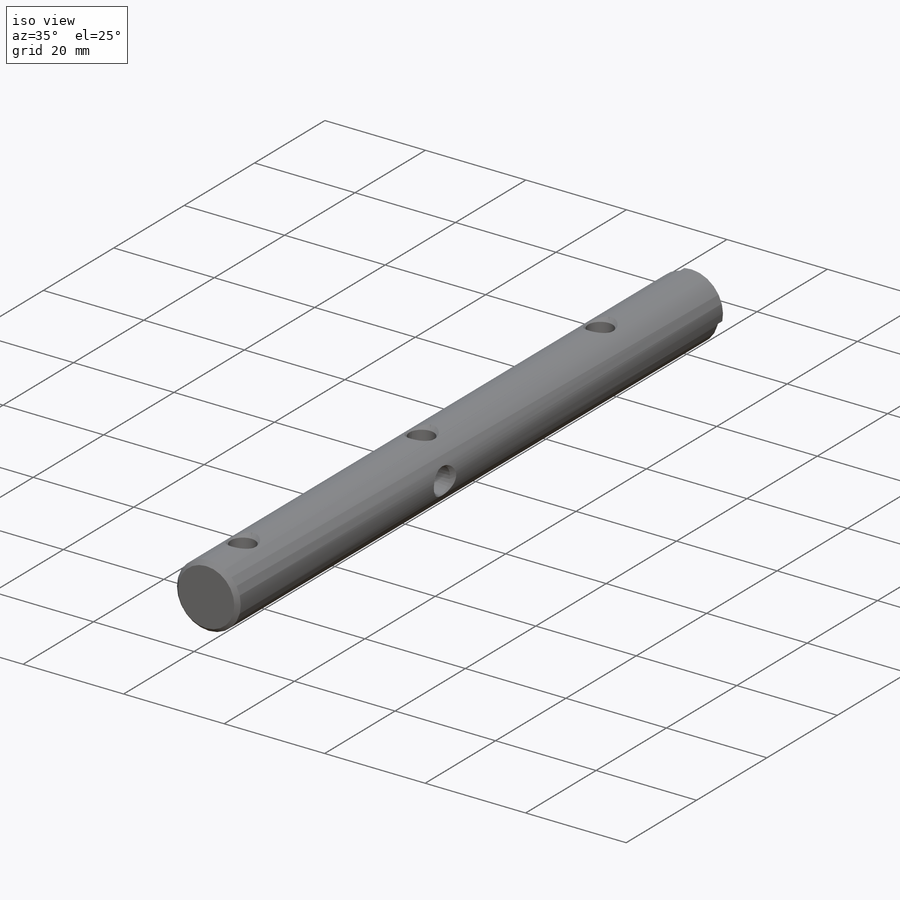
[diagram: iso view]
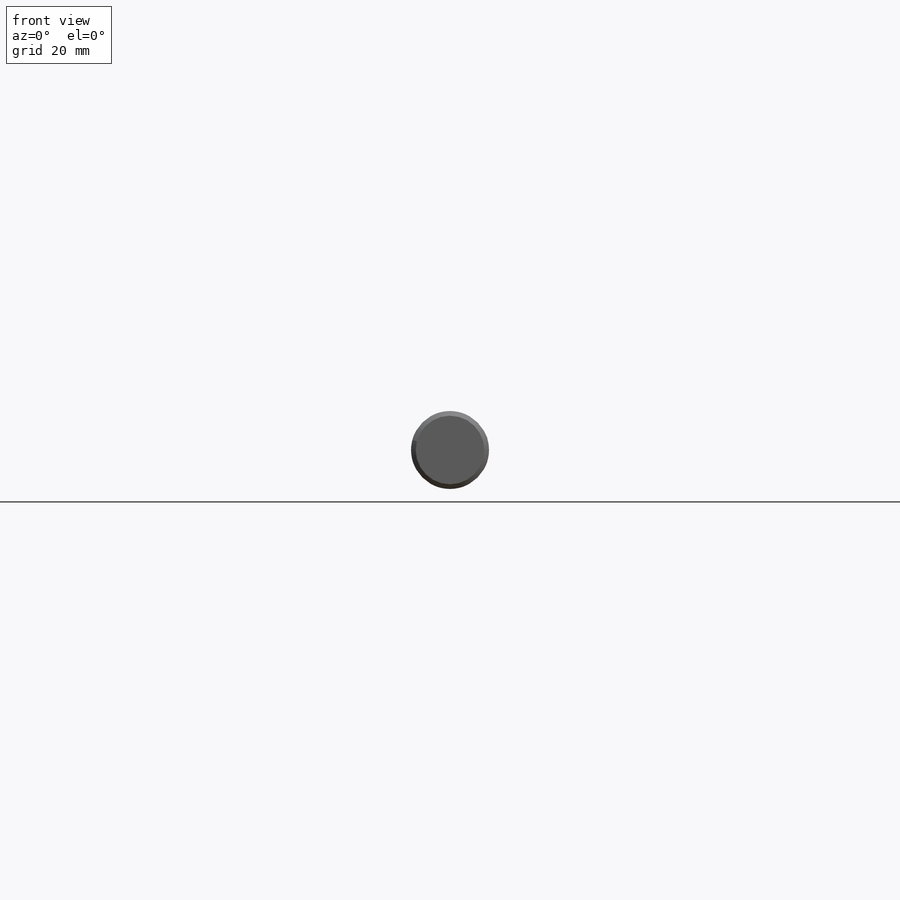
[diagram: front view]
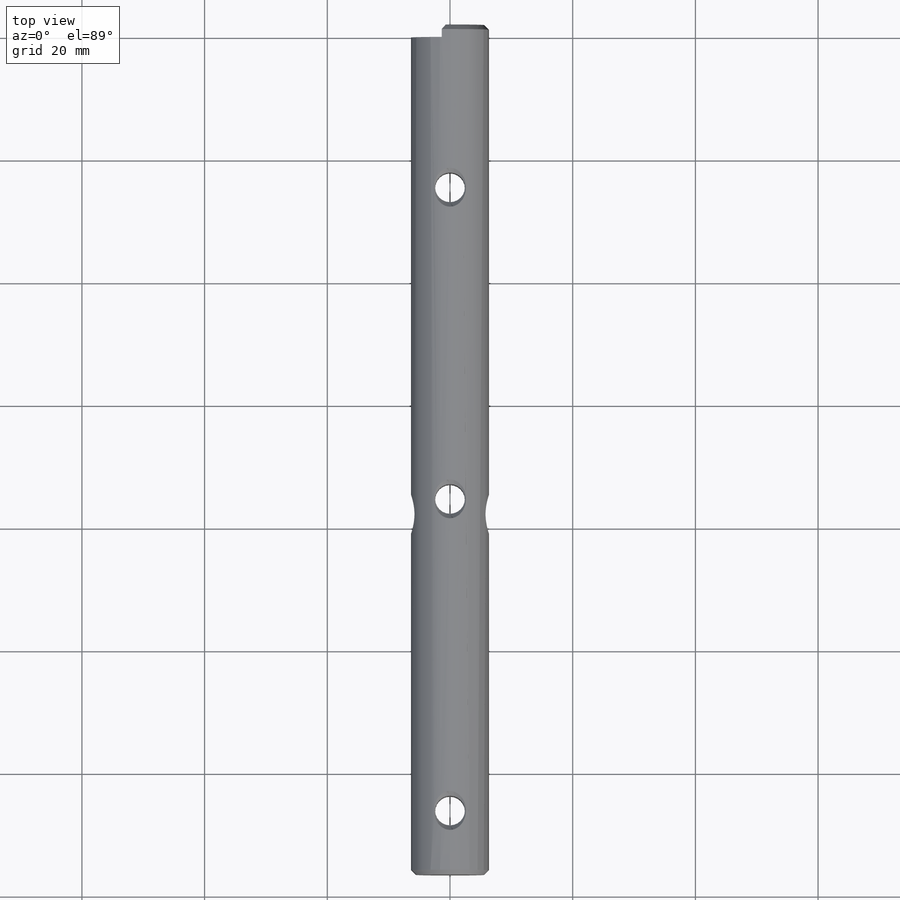
[diagram: top view]
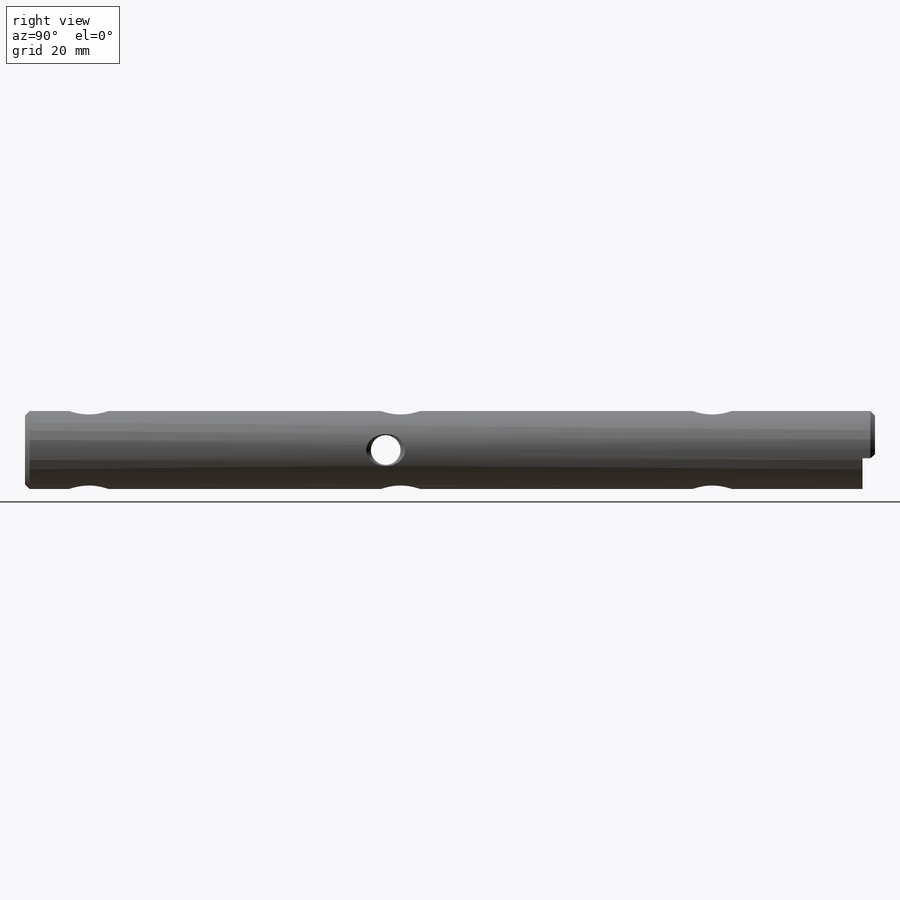
[diagram: right view]
SOLIDWORKS PART (.sldprt)
format: sldprt  version: not decoded by parser v0  size: 362,496 bytes
history: native  units: mm
features: sketch x10, plane x4, hole x3, extrude x2, chamfer x2, cut_extrude x2, material x1, thread x1 + 1 further entry (+13 scaffold rows collapsed)
feature tree (39):
  scaffold x13  (default folders/planes/origin — collapsed)
  material  "304 SSTL"
  "Origin"  ID=-1
  sketch  "Sketch1"  dims[D1=12.7mm]
  extrude  "Boss-Extrude1"  Depth=136.525mm
  chamfer  "Chamfer1"  Distance=0.762mm Angle=45deg
  plane  "Plane1"  Offset=6.35mm
  hole  "#11 (0.191) Diameter Hole1"  Diameter=4.8514mm Depth=12.7mm
  sketch  "Sketch3"  dims[D1=50.8mm D2=10.414mm]
  sketch  "Sketch2"  dims[hole-wizard template sketch: 39 standard entries collapsed; hole parameters kept: c13.Hole Dia.=4.8514mm c13.Hole Depth=12.7mm c13.Near C'Sink Dia.=6.35mm c13.D4=~33.297463mm c13.Near C'Sink Angle=90.0deg c14.D5=~14.816244mm c14.Drill Angle=118.0deg]
  hole  "#8-32 Tapped Hole1"  Diameter=3.4544mm Depth=10.7188mm
  sketch  "Sketch5"
  sketch  "Sketch4"  dims[hole-wizard template sketch: 50 standard entries collapsed; hole parameters above]
  thread  "Hole Thread2"  Diameter=8.3312mm  [1 undecoded]
  plane  "Plane2"  Offset=6.35mm
  hole  "#11 (0.191) Diameter Hole2"  Diameter=4.8514mm Depth=12.7mm
  sketch  "Sketch7"  dims[D1=77.724mm]
  sketch  "Sketch6"  dims[hole-wizard template sketch: 39 standard entries collapsed; hole parameters kept: c13.Hole Dia.=4.8514mm c13.Hole Depth=12.7mm c13.Near C'Sink Dia.=6.35mm c13.D4=~33.297463mm c13.Near C'Sink Angle=90.0deg c14.D5=~14.816244mm c14.Drill Angle=118.0deg]
  sketch  "Sketch8"  dims[D1=3.429mm]
  extrude  "Boss-Extrude2"  Depth=2.032mm
  chamfer  "Chamfer2"  Distance=0.762mm Angle=45deg
  plane  "Plane3"  Offset=6.35mm
  plane  "Plane4"  Offset=6.35mm
  sketch  "Sketch9"  dims[D1=6.35mm]
  cut_extrude  "Cut-Extrude3"  Depth=2.54mm
  sketch  "Sketch10"  dims[D1=6.35mm]
  cut_extrude  "Cut-Extrude5"  Depth=2.54mm
decode coverage: 19 of 20 modeling features carry decoded parameters; 1 rows unclassified (native names shown)
note: ~ marks probable driven/reference dimensions
note: 1 parameter value undecoded
note: suppression state not decoded; provenance and decode notes live in map.json
